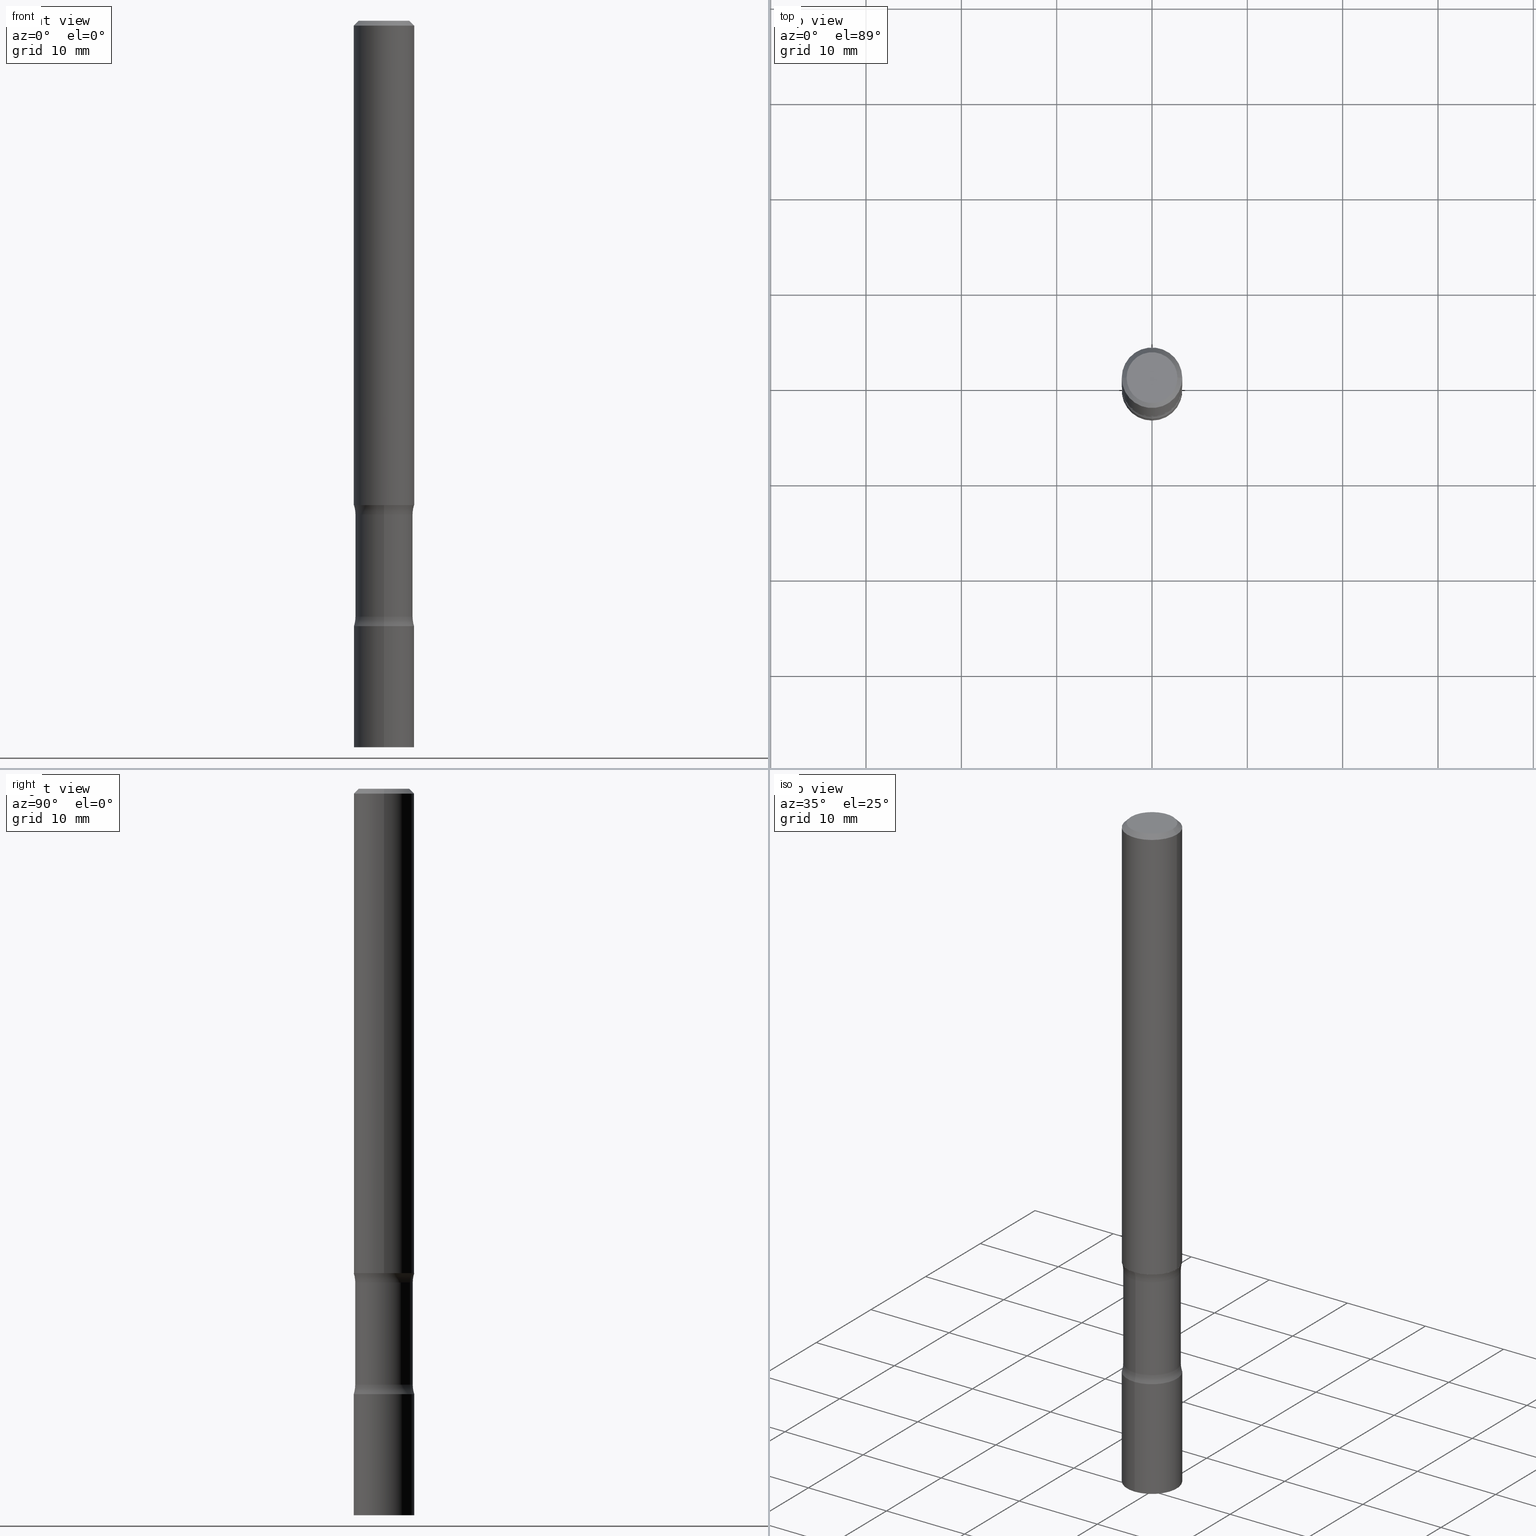
[diagram: canonical four-view strip — front | top / right | iso, engineering-drawing reading convention]
A machine part, canonical four-view strip (front | top / right | iso — engineering-drawing reading convention). The complete STEP part file that produces these views, byte-faithful:
ISO-10303-21;
HEADER;
FILE_DESCRIPTION (( 'STEP AP203' ),
    '1' );
FILE_NAME ('37785.STEP',
    '2024-03-11T13:25:19',
    ( '' ),
    ( '' ),
    'SwSTEP 2.0',
    'SolidWorks 2023',
    '' );
FILE_SCHEMA (( 'CONFIG_CONTROL_DESIGN' ));
ENDSEC;

DATA;
#1 = ORIENTED_EDGE ( 'NONE', *, *, #8, .T. ) ;
#2 = CIRCLE ( 'NONE', #424, 0.1249999999999997641 ) ;
#3 = CIRCLE ( 'NONE', #164, 0.1249999999999999584 ) ;
#4 = PRODUCT_DEFINITION_SHAPE ( 'NONE', 'NONE',  #20 ) ;
#5 = CARTESIAN_POINT ( 'NONE',  ( 8.292268179753181276E-16, 0.1187499999999896139, -3.000000000000000444 ) ) ;
#6 = DIRECTION ( 'NONE',  ( 1.000000000000000000, 0.000000000000000000, 0.000000000000000000 ) ) ;
#7 = ORIENTED_EDGE ( 'NONE', *, *, #140, .T. ) ;
#8 = EDGE_CURVE ( 'NONE', #36, #191, #358, .T. ) ;
#9 = CARTESIAN_POINT ( 'NONE',  ( 0.1249999999999998751, -8.728703347107825500E-16, 6.095220969744913435E-30 ) ) ;
#10 = CARTESIAN_POINT ( 'NONE',  ( 4.890937612370274875E-29, -6.982962677686292743E-15, -2.000000000000000444 ) ) ;
#11 = DIRECTION ( 'NONE',  ( -1.000000000000000000, 6.982962677686265922E-15, -4.883557194083112340E-29 ) ) ;
#12 = AXIS2_PLACEMENT_3D ( 'NONE', #250, #405, #411 ) ;
#13 = FACE_OUTER_BOUND ( 'NONE', #383, .T. ) ;
#14 = CARTESIAN_POINT ( 'NONE',  ( 6.114631195300628231E-29, -8.727329746987029987E-15, -2.500000000000000000 ) ) ;
#15 = APPROVAL ( #94, 'UNSPECIFIED' ) ;
#16 = CALENDAR_DATE ( 2024, 11, 3 ) ;
#17 = CARTESIAN_POINT ( 'NONE',  ( 8.728703347108444755E-16, 0.1249999999999912847, -2.500000000000000000 ) ) ;
#18 = DATE_TIME_ROLE ( 'creation_date' ) ;
#19 = DIRECTION ( 'NONE',  ( -6.982962677686265922E-15, -1.000000000000000000, 3.490931898794811600E-15 ) ) ;
#20 = PRODUCT_DEFINITION ( 'UNKNOWN', '', #73, #331 ) ;
#21 = AXIS2_PLACEMENT_3D ( 'NONE', #188, #488, #263 ) ;
#22 = DIRECTION ( 'NONE',  ( 1.000000000000000000, -6.982962677686265922E-15, 4.876176775795935793E-29 ) ) ;
#23 = ORIENTED_EDGE ( 'NONE', *, *, #211, .T. ) ;
#24 = EDGE_CURVE ( 'NONE', #26, #112, #362, .T. ) ;
#25 = DIRECTION ( 'NONE',  ( -2.445852478120250956E-29, 3.490931898794811600E-15, 1.000000000000000000 ) ) ;
#26 = VERTEX_POINT ( 'NONE', #282 ) ;
#27 = AXIS2_PLACEMENT_3D ( 'NONE', #207, #469, #170 ) ;
#28 = DIRECTION ( 'NONE',  ( 6.982962677686266711E-15, 1.000000000000000000, -3.359583909242031026E-15 ) ) ;
#29 = ORIENTED_EDGE ( 'NONE', *, *, #158, .F. ) ;
#30 = CARTESIAN_POINT ( 'NONE',  ( 0.000000000000000000, 0.000000000000000000, 0.000000000000000000 ) ) ;
#31 = CIRCLE ( 'NONE', #482, 0.1249999999999999584 ) ;
#32 = ADVANCED_FACE ( 'NONE', ( #82 ), #160, .T. ) ;
#33 = ORIENTED_EDGE ( 'NONE', *, *, #118, .F. ) ;
#34 = CC_DESIGN_DATE_AND_TIME_ASSIGNMENT ( #492, #18, ( #20 ) ) ;
#35 = CARTESIAN_POINT ( 'NONE',  ( 0.1250000000000000000, -7.855833012397076871E-15, -2.000000000000000444 ) ) ;
#36 = VERTEX_POINT ( 'NONE', #402 ) ;
#37 = ORIENTED_EDGE ( 'NONE', *, *, #445, .F. ) ;
#38 = DIRECTION ( 'NONE',  ( 2.537572289003869812E-29, -3.359583909242031026E-15, -1.000000000000000000 ) ) ;
#39 = EDGE_CURVE ( 'NONE', #474, #36, #356, .T. ) ;
#40 = CARTESIAN_POINT ( 'NONE',  ( 8.292268179753048156E-16, 0.1187499999999914874, -2.460968762510010510 ) ) ;
#41 = DIRECTION ( 'NONE',  ( 6.982962677686265133E-15, 1.000000000000000000, -4.601007147224020477E-15 ) ) ;
#42 = CARTESIAN_POINT ( 'NONE',  ( 1.702097152686087859E-15, 0.2437499999999914180, -2.460968762510010510 ) ) ;
#43 = EDGE_LOOP ( 'NONE', ( #245, #7, #151, #37 ) ) ;
#44 = TOROIDAL_SURFACE ( 'NONE', #113, 0.2437500000000000222, 0.1250000000000000000 ) ;
#45 = DIRECTION ( 'NONE',  ( -6.982962677686265922E-15, -1.000000000000000000, 0.000000000000000000 ) ) ;
#46 = DIRECTION ( 'NONE',  ( 2.537572289003869812E-29, -3.359583909242031420E-15, -1.000000000000000000 ) ) ;
#47 = EDGE_CURVE ( 'NONE', #382, #304, #316, .T. ) ;
#48 = LOCAL_TIME ( 9, 25, 19.00000000000000000, #297 ) ;
#49 = CARTESIAN_POINT ( 'NONE',  ( -8.575622497213801114E-16, -0.1250000000000087430, -2.500000000000000000 ) ) ;
#50 = CARTESIAN_POINT ( 'NONE',  ( -1.820262020262032864E-29, -2.358731438611790769E-14, -2.999999999999999556 ) ) ;
#51 = CARTESIAN_POINT ( 'NONE',  ( 4.890937612370273159E-31, -6.982962677686291609E-17, -0.02000000000000000042 ) ) ;
#52 = DIRECTION ( 'NONE',  ( 6.982962677686265922E-15, 1.000000000000000000, -3.490931898794811995E-15 ) ) ;
#53 = AXIS2_PLACEMENT_3D ( 'NONE', #248, #470, #120 ) ;
#54 = DIRECTION ( 'NONE',  ( -2.445852478120250956E-29, 3.490931898794811600E-15, 1.000000000000000000 ) ) ;
#55 = PERSON_AND_ORGANIZATION_ROLE ( 'creator' ) ;
#56 = CONICAL_SURFACE ( 'NONE', #169, 0.1249999999999997641, 0.7853981633974480570 ) ;
#57 = DIRECTION ( 'NONE',  ( -1.000000000000000000, 6.982962677686265922E-15, -4.883557194083112340E-29 ) ) ;
#58 = CALENDAR_DATE ( 2024, 11, 3 ) ;
#59 = CARTESIAN_POINT ( 'NONE',  ( 7.383417339802561736E-29, -1.040712170160804313E-14, -2.999999999999999556 ) ) ;
#60 = AXIS2_PLACEMENT_3D ( 'NONE', #440, #57, #253 ) ;
#61 = ORIENTED_EDGE ( 'NONE', *, *, #236, .T. ) ;
#62 = EDGE_CURVE ( 'NONE', #491, #314, #311, .T. ) ;
#63 = CIRCLE ( 'NONE', #208, 0.1249999999999999584 ) ;
#64 = CARTESIAN_POINT ( 'NONE',  ( 4.845845050798693605E-29, -7.047537792366015263E-15, -2.000000000000000444 ) ) ;
#65 = ORIENTED_EDGE ( 'NONE', *, *, #450, .T. ) ;
#66 = FACE_OUTER_BOUND ( 'NONE', #421, .T. ) ;
#67 = ORIENTED_EDGE ( 'NONE', *, *, #39, .F. ) ;
#68 = EDGE_CURVE ( 'NONE', #237, #315, #429, .T. ) ;
#69 = CARTESIAN_POINT ( 'NONE',  ( 8.881784197001248379E-16, 0.1249999999999999584, -4.363664873493513021E-16 ) ) ;
#70 = CIRCLE ( 'NONE', #136, 0.1187499999999999944 ) ;
#71 = ORIENTED_EDGE ( 'NONE', *, *, #8, .F. ) ;
#72 = PLANE ( 'NONE',  #216 ) ;
#73 = PRODUCT_DEFINITION_FORMATION_WITH_SPECIFIED_SOURCE ( 'ANY', '', #166, .NOT_KNOWN. ) ;
#74 = ORIENTED_EDGE ( 'NONE', *, *, #500, .F. ) ;
#75 = CYLINDRICAL_SURFACE ( 'NONE', #104, 0.1187500000000000361 ) ;
#76 = DIRECTION ( 'NONE',  ( 1.000000000000000000, -6.860497997771530774E-15, 4.842414157273910573E-29 ) ) ;
#77 = DIRECTION ( 'NONE',  ( 1.000000000000000000, -6.982962677686266711E-15, 0.000000000000000000 ) ) ;
#78 = LINE ( 'NONE', #9, #361 ) ;
#79 = ORIENTED_EDGE ( 'NONE', *, *, #251, .T. ) ;
#80 = DIRECTION ( 'NONE',  ( -2.445468806185136877E-29, 3.491481338843145188E-15, 1.000000000000000000 ) ) ;
#81 = ADVANCED_FACE ( 'NONE', ( #119 ), #75, .T. ) ;
#82 = FACE_OUTER_BOUND ( 'NONE', #463, .T. ) ;
#83 = CIRCLE ( 'NONE', #503, 0.1249999999999997641 ) ;
#84 = DIRECTION ( 'NONE',  ( 1.000000000000000000, -6.982962677686267499E-15, 4.876176775795935793E-29 ) ) ;
#85 = AXIS2_PLACEMENT_3D ( 'NONE', #64, #272, #425 ) ;
#86 = DIRECTION ( 'NONE',  ( 6.982962677686265133E-15, 1.000000000000000000, -4.601007147224020477E-15 ) ) ;
#87 = VECTOR ( 'NONE', #342, 39.37007874015748143 ) ;
#88 = CC_DESIGN_APPROVAL ( #15, ( #73 ) ) ;
#89 = APPROVAL_DATE_TIME ( #363, #257 ) ;
#90 = FACE_OUTER_BOUND ( 'NONE', #154, .T. ) ;
#91 = DIRECTION ( 'NONE',  ( 2.445852478120250115E-29, -3.490931898794811995E-15, -1.000000000000000000 ) ) ;
#92 = DIRECTION ( 'NONE',  ( 1.000000000000000000, -6.982962677686270655E-15, 0.000000000000000000 ) ) ;
#93 = ORIENTED_EDGE ( 'NONE', *, *, #47, .T. ) ;
#94 = APPROVAL_STATUS ( 'not_yet_approved' ) ;
#95 = AXIS2_PLACEMENT_3D ( 'NONE', #444, #480, #132 ) ;
#96 = DIRECTION ( 'NONE',  ( 2.537572289003869812E-29, -3.359583909242031026E-15, -1.000000000000000000 ) ) ;
#97 = PERSON_AND_ORGANIZATION ( #401, #487 ) ;
#98 = APPROVAL_PERSON_ORGANIZATION ( #222, #485, #302 ) ;
#99 = DIRECTION ( 'NONE',  ( -6.982962677686265922E-15, -1.000000000000000000, 4.370956789862822727E-15 ) ) ;
#100 = MANIFOLD_SOLID_BREP ( 'Body-Move/Copy2[1]', #471 ) ;
#101 = EDGE_CURVE ( 'NONE', #264, #315, #348, .T. ) ;
#102 = DIRECTION ( 'NONE',  ( 2.537572289003869812E-29, -3.359583909242031026E-15, -1.000000000000000000 ) ) ;
#103 = APPROVAL_STATUS ( 'not_yet_approved' ) ;
#104 = AXIS2_PLACEMENT_3D ( 'NONE', #387, #38, #41 ) ;
#105 = DIRECTION ( 'NONE',  ( 6.982962677686265133E-15, 1.000000000000000000, -2.300503573612011422E-15 ) ) ;
#106 = VERTEX_POINT ( 'NONE', #390 ) ;
#107 = SECURITY_CLASSIFICATION ( '', '', #416 ) ;
#108 = LINE ( 'NONE', #69, #87 ) ;
#109 = ORIENTED_EDGE ( 'NONE', *, *, #197, .T. ) ;
#110 = DIRECTION ( 'NONE',  ( -6.982962677686265922E-15, -1.000000000000000000, 3.490931898794811600E-15 ) ) ;
#111 = EDGE_LOOP ( 'NONE', ( #377, #426, #29, #233 ) ) ;
#112 = VERTEX_POINT ( 'NONE', #40 ) ;
#113 = AXIS2_PLACEMENT_3D ( 'NONE', #171, #177, #289 ) ;
#114 = DIRECTION ( 'NONE',  ( 2.537572289003869812E-29, -3.359583909242031026E-15, -1.000000000000000000 ) ) ;
#115 = VERTEX_POINT ( 'NONE', #201 ) ;
#116 = AXIS2_PLACEMENT_3D ( 'NONE', #381, #373, #453 ) ;
#117 = EDGE_LOOP ( 'NONE', ( #312, #61, #396, #33 ) ) ;
#118 = EDGE_CURVE ( 'NONE', #106, #191, #2, .T. ) ;
#119 = FACE_OUTER_BOUND ( 'NONE', #111, .T. ) ;
#120 = DIRECTION ( 'NONE',  ( 1.000000000000000000, -6.982962677686267499E-15, 4.876176775795935793E-29 ) ) ;
#121 = CARTESIAN_POINT ( 'NONE',  ( -8.575622497213932262E-16, -0.1250000000000071054, -2.000000000000000000 ) ) ;
#122 = ORIENTED_EDGE ( 'NONE', *, *, #388, .T. ) ;
#123 = ADVANCED_FACE ( 'NONE', ( #243 ), #202, .T. ) ;
#124 = ADVANCED_FACE ( 'NONE', ( #129 ), #44, .F. ) ;
#125 = EDGE_LOOP ( 'NONE', ( #122, #147, #419, #461 ) ) ;
#126 = PERSON_AND_ORGANIZATION ( #401, #487 ) ;
#127 = CARTESIAN_POINT ( 'NONE',  ( -0.1249999999999998751, 8.881784197001243449E-16, -6.148668862818626622E-30 ) ) ;
#128 = TOROIDAL_SURFACE ( 'NONE', #12, 0.2437500000000000222, 0.1250000000000000000 ) ;
#129 = FACE_OUTER_BOUND ( 'NONE', #193, .T. ) ;
#130 = VECTOR ( 'NONE', #417, 39.37007874015748143 ) ;
#131 =( NAMED_UNIT ( * ) SI_UNIT ( $, .STERADIAN. ) SOLID_ANGLE_UNIT ( ) );
#132 = DIRECTION ( 'NONE',  ( 6.860497997771530774E-15, 1.000000000000000000, 0.000000000000000000 ) ) ;
#133 = DATE_AND_TIME ( #291, #48 ) ;
#134 = DIRECTION ( 'NONE',  ( -2.445468806185136597E-29, 3.491481338843145583E-15, 1.000000000000000000 ) ) ;
#135 = ORIENTED_EDGE ( 'NONE', *, *, #445, .T. ) ;
#136 = AXIS2_PLACEMENT_3D ( 'NONE', #258, #340, #303 ) ;
#137 = EDGE_CURVE ( 'NONE', #497, #507, #400, .T. ) ;
#138 = CARTESIAN_POINT ( 'NONE',  ( 0.1249999999999997641, -9.273918764983027713E-16, -0.02000000000000000042 ) ) ;
#139 = CIRCLE ( 'NONE', #374, 0.1049999999999997741 ) ;
#140 = EDGE_CURVE ( 'NONE', #230, #115, #247, .T. ) ;
#141 = LINE ( 'NONE', #296, #130 ) ;
#142 = PERSON_AND_ORGANIZATION_ROLE ( 'design_supplier' ) ;
#143 = CARTESIAN_POINT ( 'NONE',  ( 4.890937612370273159E-31, -6.982962677686291609E-17, -0.02000000000000000042 ) ) ;
#144 = EDGE_LOOP ( 'NONE', ( #196, #232, #339, #74 ) ) ;
#145 = CALENDAR_DATE ( 2024, 11, 3 ) ;
#146 = CARTESIAN_POINT ( 'NONE',  ( 0.000000000000000000, 0.000000000000000000, 0.000000000000000000 ) ) ;
#147 = ORIENTED_EDGE ( 'NONE', *, *, #320, .T. ) ;
#148 = PRODUCT_RELATED_PRODUCT_CATEGORY ( 'detail', '', ( #166 ) ) ;
#149 = APPROVAL_PERSON_ORGANIZATION ( #126, #257, #249 ) ;
#150 = CARTESIAN_POINT ( 'NONE',  ( 6.114631195300628231E-29, -8.727329746987029987E-15, -2.500000000000000000 ) ) ;
#151 = ORIENTED_EDGE ( 'NONE', *, *, #467, .T. ) ;
#152 = ORIENTED_EDGE ( 'NONE', *, *, #137, .F. ) ;
#153 = CARTESIAN_POINT ( 'NONE',  ( 4.890937612370274875E-29, -6.982962677686292743E-15, -2.000000000000000444 ) ) ;
#154 = EDGE_LOOP ( 'NONE', ( #152, #307 ) ) ;
#155 = AXIS2_PLACEMENT_3D ( 'NONE', #59, #295, #86 ) ;
#156 = APPROVAL_STATUS ( 'not_yet_approved' ) ;
#157 = EDGE_LOOP ( 'NONE', ( #343, #135 ) ) ;
#158 = EDGE_CURVE ( 'NONE', #112, #315, #457, .T. ) ;
#159 = APPROVAL_PERSON_ORGANIZATION ( #262, #15, #294 ) ;
#160 = CYLINDRICAL_SURFACE ( 'NONE', #53, 0.1249999999999998751 ) ;
#161 = CARTESIAN_POINT ( 'NONE',  ( -8.146841372352955554E-16, -0.1187500000000104444, -2.999999999999999112 ) ) ;
#162 = VECTOR ( 'NONE', #238, 39.37007874015748143 ) ;
#163 = ORIENTED_EDGE ( 'NONE', *, *, #412, .F. ) ;
#164 = AXIS2_PLACEMENT_3D ( 'NONE', #14, #327, #452 ) ;
#165 = EDGE_CURVE ( 'NONE', #304, #106, #210, .T. ) ;
#166 = PRODUCT ( '37785', '37785', '', ( #475 ) ) ;
#167 = LENGTH_MEASURE_WITH_UNIT ( LENGTH_MEASURE( 0.02539999999999999897 ), #203 );
#168 = ORIENTED_EDGE ( 'NONE', *, *, #241, .F. ) ;
#169 = AXIS2_PLACEMENT_3D ( 'NONE', #143, #414, #192 ) ;
#170 = DIRECTION ( 'NONE',  ( 1.000000000000000000, -6.982962677686265922E-15, 4.876176775795935232E-29 ) ) ;
#171 = CARTESIAN_POINT ( 'NONE',  ( 4.938696304666674594E-29, -7.187535714856154390E-15, -2.039031237489990378 ) ) ;
#172 = CARTESIAN_POINT ( 'NONE',  ( 8.881784197001922855E-16, 0.1249999999999894945, -3.000000000000000888 ) ) ;
#173 = LOCAL_TIME ( 9, 25, 19.00000000000000000, #217 ) ;
#174 = CIRCLE ( 'NONE', #85, 0.1250000000000000278 ) ;
#175 = APPROVAL_DATE_TIME ( #368, #485 ) ;
#176 = DIRECTION ( 'NONE',  ( 2.537572289003869252E-29, -3.359583909242031420E-15, -1.000000000000000000 ) ) ;
#177 = DIRECTION ( 'NONE',  ( 2.537572289003869812E-29, -3.359583909242031026E-15, -1.000000000000000000 ) ) ;
#178 = ADVANCED_FACE ( 'NONE', ( #367 ), #182, .F. ) ;
#179 = VECTOR ( 'NONE', #504, 39.37007874015748143 ) ;
#180 = SHAPE_DEFINITION_REPRESENTATION ( #4, #181 ) ;
#181 = ADVANCED_BREP_SHAPE_REPRESENTATION ( '37785', ( #100, #270, #436, #391 ), #326 ) ;
#182 = PLANE ( 'NONE',  #439 ) ;
#183 = COORDINATED_UNIVERSAL_TIME_OFFSET ( 5, 0, .BEHIND. ) ;
#184 = LOCAL_TIME ( 9, 25, 19.00000000000000000, #455 ) ;
#185 = CARTESIAN_POINT ( 'NONE',  ( 6.015586608640499097E-29, -8.596201029557853074E-15, -2.460968762510010066 ) ) ;
#186 = DIMENSIONAL_EXPONENTS ( 1.000000000000000000, 0.000000000000000000, 0.000000000000000000, 0.000000000000000000, 0.000000000000000000, 0.000000000000000000, 0.000000000000000000 ) ;
#187 = ORIENTED_EDGE ( 'NONE', *, *, #68, .F. ) ;
#188 = CARTESIAN_POINT ( 'NONE',  ( 6.114631195300628231E-29, -8.727329746987029987E-15, -2.500000000000000000 ) ) ;
#189 = ORIENTED_EDGE ( 'NONE', *, *, #39, .T. ) ;
#190 = CARTESIAN_POINT ( 'NONE',  ( -0.1250000000000000000, -2.638217732531449633E-15, -2.000000000000000444 ) ) ;
#191 = VERTEX_POINT ( 'NONE', #138 ) ;
#192 = DIRECTION ( 'NONE',  ( -1.000000000000000000, 6.982962677686266711E-15, 0.000000000000000000 ) ) ;
#193 = EDGE_LOOP ( 'NONE', ( #468, #79, #473, #458 ) ) ;
#194 = ADVANCED_FACE ( 'NONE', ( #259 ), #324, .T. ) ;
#195 = DIRECTION ( 'NONE',  ( 2.537572289003869812E-29, -3.359583909242031026E-15, -1.000000000000000000 ) ) ;
#196 = ORIENTED_EDGE ( 'NONE', *, *, #372, .F. ) ;
#197 = EDGE_CURVE ( 'NONE', #191, #106, #83, .T. ) ;
#198 = AXIS2_PLACEMENT_3D ( 'NONE', #370, #254, #99 ) ;
#199 = CARTESIAN_POINT ( 'NONE',  ( 0.1249999999999997641, -9.273918764983027713E-16, -0.02000000000000000042 ) ) ;
#200 = CIRCLE ( 'NONE', #242, 0.1250000000000000000 ) ;
#201 = CARTESIAN_POINT ( 'NONE',  ( -8.728703347107095803E-16, -0.1250000000000104361, -2.999999999999999556 ) ) ;
#202 = CYLINDRICAL_SURFACE ( 'NONE', #204, 0.1249999999999999584 ) ;
#203 =( LENGTH_UNIT ( ) NAMED_UNIT ( * ) SI_UNIT ( $, .METRE. ) );
#204 = AXIS2_PLACEMENT_3D ( 'NONE', #354, #54, #19 ) ;
#205 = ORIENTED_EDGE ( 'NONE', *, *, #428, .T. ) ;
#206 =( NAMED_UNIT ( * ) PLANE_ANGLE_UNIT ( ) SI_UNIT ( $, .RADIAN. ) );
#207 = CARTESIAN_POINT ( 'NONE',  ( 0.000000000000000000, 0.000000000000000000, 0.000000000000000000 ) ) ;
#208 = AXIS2_PLACEMENT_3D ( 'NONE', #498, #25, #493 ) ;
#209 = DIRECTION ( 'NONE',  ( -2.445852478120250956E-29, 3.490931898794811995E-15, 1.000000000000000000 ) ) ;
#210 = LINE ( 'NONE', #127, #371 ) ;
#211 = EDGE_CURVE ( 'NONE', #26, #497, #285, .T. ) ;
#212 = CYLINDRICAL_SURFACE ( 'NONE', #418, 0.1249999999999998751 ) ;
#213 = DIRECTION ( 'NONE',  ( 2.537572289003869812E-29, -3.359583909242031026E-15, -1.000000000000000000 ) ) ;
#214 = PERSON_AND_ORGANIZATION ( #401, #487 ) ;
#215 = CARTESIAN_POINT ( 'NONE',  ( 6.015586608640499097E-29, -8.596201029557853074E-15, -2.460968762510010066 ) ) ;
#216 = AXIS2_PLACEMENT_3D ( 'NONE', #234, #384, #266 ) ;
#217 = COORDINATED_UNIVERSAL_TIME_OFFSET ( 5, 0, .BEHIND. ) ;
#218 = ADVANCED_FACE ( 'NONE', ( #13 ), #128, .F. ) ;
#219 = CARTESIAN_POINT ( 'NONE',  ( -8.361231934783565195E-16, -0.1187500000000071693, -2.039031237489990378 ) ) ;
#220 = PERSON_AND_ORGANIZATION ( #401, #487 ) ;
#221 = DIRECTION ( 'NONE',  ( -2.445468806185136877E-29, 3.491481338843145188E-15, 1.000000000000000000 ) ) ;
#222 = PERSON_AND_ORGANIZATION ( #401, #487 ) ;
#223 = DIRECTION ( 'NONE',  ( -2.438088387897960049E-29, 3.491481338843145188E-15, 1.000000000000000000 ) ) ;
#224 = EDGE_LOOP ( 'NONE', ( #310, #346 ) ) ;
#225 = CIRCLE ( 'NONE', #21, 0.1249999999999999584 ) ;
#226 = DIRECTION ( 'NONE',  ( -2.445852478120250956E-29, 3.490931898794811600E-15, 1.000000000000000000 ) ) ;
#227 = VERTEX_POINT ( 'NONE', #17 ) ;
#228 = APPLICATION_CONTEXT ( 'configuration controlled 3d designs of mechanical parts and assemblies' ) ;
#229 = CARTESIAN_POINT ( 'NONE',  ( -8.361231934783450810E-16, -0.1187500000000086681, -2.460968762510009622 ) ) ;
#230 = VERTEX_POINT ( 'NONE', #172 ) ;
#231 = DIRECTION ( 'NONE',  ( 1.000000000000000000, -6.982962677686265922E-15, 4.876176775795935232E-29 ) ) ;
#232 = ORIENTED_EDGE ( 'NONE', *, *, #101, .T. ) ;
#233 = ORIENTED_EDGE ( 'NONE', *, *, #24, .F. ) ;
#234 = CARTESIAN_POINT ( 'NONE',  ( 7.332110811570563480E-16, 0.1049999999999997741, -3.666055405785295052E-16 ) ) ;
#235 = ORIENTED_EDGE ( 'NONE', *, *, #372, .T. ) ;
#236 = EDGE_CURVE ( 'NONE', #304, #382, #301, .T. ) ;
#237 = VERTEX_POINT ( 'NONE', #219 ) ;
#238 = DIRECTION ( 'NONE',  ( 2.537572289003869812E-29, -3.359583909242031420E-15, -1.000000000000000000 ) ) ;
#239 = AXIS2_PLACEMENT_3D ( 'NONE', #215, #213, #413 ) ;
#240 = DIRECTION ( 'NONE',  ( 6.860497997771530774E-15, 1.000000000000000000, 0.000000000000000000 ) ) ;
#241 = EDGE_CURVE ( 'NONE', #227, #264, #3, .T. ) ;
#242 = AXIS2_PLACEMENT_3D ( 'NONE', #42, #11, #45 ) ;
#243 = FACE_OUTER_BOUND ( 'NONE', #125, .T. ) ;
#244 = CARTESIAN_POINT ( 'NONE',  ( 6.113672015462842613E-29, -8.728703347107864943E-15, -2.500000000000000000 ) ) ;
#245 = ORIENTED_EDGE ( 'NONE', *, *, #320, .F. ) ;
#246 = CARTESIAN_POINT ( 'NONE',  ( 0.000000000000000000, 0.000000000000000000, 0.000000000000000000 ) ) ;
#247 = CIRCLE ( 'NONE', #198, 0.1249999999999999584 ) ;
#248 = CARTESIAN_POINT ( 'NONE',  ( 0.000000000000000000, 0.000000000000000000, 0.000000000000000000 ) ) ;
#249 = APPROVAL_ROLE ( '' ) ;
#250 = CARTESIAN_POINT ( 'NONE',  ( 6.018222341714267541E-29, -8.592426509779609334E-15, -2.460968762510010066 ) ) ;
#251 = EDGE_CURVE ( 'NONE', #237, #507, #448, .T. ) ;
#252 = PERSON_AND_ORGANIZATION ( #401, #487 ) ;
#253 = DIRECTION ( 'NONE',  ( -6.982962677686265922E-15, -1.000000000000000000, 0.000000000000000000 ) ) ;
#254 = DIRECTION ( 'NONE',  ( -2.445852478120250956E-29, 3.490931898794811600E-15, 1.000000000000000000 ) ) ;
#255 = ORIENTED_EDGE ( 'NONE', *, *, #298, .T. ) ;
#256 = DATE_TIME_ROLE ( 'classification_date' ) ;
#257 = APPROVAL ( #156, 'UNSPECIFIED' ) ;
#258 = CARTESIAN_POINT ( 'NONE',  ( 4.944889637458821058E-29, -7.178666509795189020E-15, -2.039031237489990378 ) ) ;
#259 = FACE_OUTER_BOUND ( 'NONE', #347, .T. ) ;
#260 = FACE_OUTER_BOUND ( 'NONE', #43, .T. ) ;
#261 = CC_DESIGN_PERSON_AND_ORGANIZATION_ASSIGNMENT ( #214, #55, ( #73 ) ) ;
#262 = PERSON_AND_ORGANIZATION ( #401, #487 ) ;
#263 = DIRECTION ( 'NONE',  ( -6.982962677686265922E-15, -1.000000000000000000, 4.370956789862822727E-15 ) ) ;
#264 = VERTEX_POINT ( 'NONE', #49 ) ;
#265 = ADVANCED_FACE ( 'NONE', ( #90 ), #290, .F. ) ;
#266 = DIRECTION ( 'NONE',  ( -1.000000000000000000, 6.982962677686265922E-15, -4.876176775795935793E-29 ) ) ;
#267 = ORIENTED_EDGE ( 'NONE', *, *, #241, .T. ) ;
#268 = DIRECTION ( 'NONE',  ( -2.445468806185136597E-29, 3.491481338843145583E-15, 1.000000000000000000 ) ) ;
#269 = EDGE_LOOP ( 'NONE', ( #499, #1, #109, #273 ) ) ;
#270 = MANIFOLD_SOLID_BREP ( 'Body-Move/Copy2[2]', #277 ) ;
#271 = AXIS2_PLACEMENT_3D ( 'NONE', #430, #76, #240 ) ;
#272 = DIRECTION ( 'NONE',  ( 2.537572289003869812E-29, -3.359583909242031026E-15, -1.000000000000000000 ) ) ;
#273 = ORIENTED_EDGE ( 'NONE', *, *, #450, .F. ) ;
#274 = LOCAL_TIME ( 9, 25, 19.00000000000000000, #183 ) ;
#275 = DIRECTION ( 'NONE',  ( -6.982962677686265922E-15, -1.000000000000000000, 4.370956789862822727E-15 ) ) ;
#276 = CARTESIAN_POINT ( 'NONE',  ( 4.890937612370274875E-29, -6.982962677686292743E-15, -2.000000000000000444 ) ) ;
#277 = CLOSED_SHELL ( 'NONE', ( #32, #284, #349, #352, #395, #479 ) ) ;
#278 = CARTESIAN_POINT ( 'NONE',  ( 6.114631195300628231E-29, -8.727329746987029987E-15, -2.500000000000000000 ) ) ;
#279 = LINE ( 'NONE', #394, #427 ) ;
#280 = AXIS2_PLACEMENT_3D ( 'NONE', #50, #91, #52 ) ;
#281 = DIRECTION ( 'NONE',  ( -2.445852478120250956E-29, 3.490931898794811600E-15, 1.000000000000000000 ) ) ;
#282 = CARTESIAN_POINT ( 'NONE',  ( 8.292268179752934757E-16, 0.1187499999999928196, -2.039031237489990822 ) ) ;
#283 = COORDINATED_UNIVERSAL_TIME_OFFSET ( 5, 0, .BEHIND. ) ;
#284 = ADVANCED_FACE ( 'NONE', ( #330 ), #357, .T. ) ;
#285 = CIRCLE ( 'NONE', #60, 0.1250000000000000000 ) ;
#286 = DIRECTION ( 'NONE',  ( 6.982962677686265922E-15, 1.000000000000000000, -3.490931898794811995E-15 ) ) ;
#287 = PERSON_AND_ORGANIZATION ( #401, #487 ) ;
#288 = CIRCLE ( 'NONE', #351, 0.1187500000000000777 ) ;
#289 = DIRECTION ( 'NONE',  ( 6.982962677686266711E-15, 1.000000000000000000, -3.359583909242031026E-15 ) ) ;
#290 = PLANE ( 'NONE',  #293 ) ;
#291 = CALENDAR_DATE ( 2024, 11, 3 ) ;
#292 = DIRECTION ( 'NONE',  ( 6.982962677686265922E-15, 1.000000000000000000, -3.359583909242031420E-15 ) ) ;
#293 = AXIS2_PLACEMENT_3D ( 'NONE', #406, #176, #292 ) ;
#294 = APPROVAL_ROLE ( '' ) ;
#295 = DIRECTION ( 'NONE',  ( 2.537572289003869812E-29, -3.359583909242031026E-15, -1.000000000000000000 ) ) ;
#296 = CARTESIAN_POINT ( 'NONE',  ( -0.1249999999999997641, 8.030407079339186601E-16, -0.02000000000000000042 ) ) ;
#297 = COORDINATED_UNIVERSAL_TIME_OFFSET ( 5, 0, .BEHIND. ) ;
#298 = EDGE_CURVE ( 'NONE', #237, #26, #70, .T. ) ;
#299 = DIRECTION ( 'NONE',  ( 6.982962677686265922E-15, 1.000000000000000000, -4.601007147224018900E-15 ) ) ;
#300 = ORIENTED_EDGE ( 'NONE', *, *, #236, .F. ) ;
#301 = CIRCLE ( 'NONE', #317, 0.1250000000000000000 ) ;
#302 = APPROVAL_ROLE ( '' ) ;
#303 = DIRECTION ( 'NONE',  ( 6.982962677686265133E-15, 1.000000000000000000, -2.300503573612011422E-15 ) ) ;
#304 = VERTEX_POINT ( 'NONE', #190 ) ;
#305 = AXIS2_PLACEMENT_3D ( 'NONE', #30, #226, #110 ) ;
#306 = DIRECTION ( 'NONE',  ( 6.982962677686265922E-15, 1.000000000000000000, -4.370956789862822727E-15 ) ) ;
#307 = ORIENTED_EDGE ( 'NONE', *, *, #337, .F. ) ;
#308 = ADVANCED_FACE ( 'NONE', ( #309 ), #397, .F. ) ;
#309 = FACE_OUTER_BOUND ( 'NONE', #144, .T. ) ;
#310 = ORIENTED_EDGE ( 'NONE', *, *, #388, .F. ) ;
#311 = CIRCLE ( 'NONE', #333, 0.1249999999999999584 ) ;
#312 = ORIENTED_EDGE ( 'NONE', *, *, #165, .F. ) ;
#313 = CC_DESIGN_SECURITY_CLASSIFICATION ( #107, ( #73 ) ) ;
#314 = VERTEX_POINT ( 'NONE', #338 ) ;
#315 = VERTEX_POINT ( 'NONE', #229 ) ;
#316 = CIRCLE ( 'NONE', #478, 0.1250000000000000000 ) ;
#317 = AXIS2_PLACEMENT_3D ( 'NONE', #10, #134, #92 ) ;
#318 = ORIENTED_EDGE ( 'NONE', *, *, #118, .T. ) ;
#319 = ORIENTED_EDGE ( 'NONE', *, *, #500, .T. ) ;
#320 = EDGE_CURVE ( 'NONE', #230, #314, #108, .T. ) ;
#321 = APPLICATION_PROTOCOL_DEFINITION ( 'international standard', 'config_control_design', 1994, #228 ) ;
#322 = DIRECTION ( 'NONE',  ( -2.445468806185136597E-29, 3.491481338843145583E-15, 1.000000000000000000 ) ) ;
#323 = DIRECTION ( 'NONE',  ( -6.982962677686265922E-15, -1.000000000000000000, 3.359583909242031420E-15 ) ) ;
#324 = CYLINDRICAL_SURFACE ( 'NONE', #155, 0.1187500000000000361 ) ;
#325 =( CONVERSION_BASED_UNIT ( 'INCH', #167 ) LENGTH_UNIT ( ) NAMED_UNIT ( #186 ) );
#326 =( GEOMETRIC_REPRESENTATION_CONTEXT ( 3 ) GLOBAL_UNCERTAINTY_ASSIGNED_CONTEXT ( ( #454 ) ) GLOBAL_UNIT_ASSIGNED_CONTEXT ( ( #325, #206, #131 ) ) REPRESENTATION_CONTEXT ( 'NONE', 'WORKASPACE' ) );
#327 = DIRECTION ( 'NONE',  ( 2.537572289003869812E-29, -3.359583909242031026E-15, -1.000000000000000000 ) ) ;
#328 = EDGE_CURVE ( 'NONE', #26, #237, #506, .T. ) ;
#329 = APPLICATION_CONTEXT ( 'configuration controlled 3d designs of mechanical parts and assemblies' ) ;
#330 = FACE_OUTER_BOUND ( 'NONE', #269, .T. ) ;
#331 = DESIGN_CONTEXT ( 'detailed design', #329, 'design' ) ;
#332 = CARTESIAN_POINT ( 'NONE',  ( 4.845845050798693605E-29, -7.047537792366015263E-15, -2.000000000000000444 ) ) ;
#333 = AXIS2_PLACEMENT_3D ( 'NONE', #278, #281, #275 ) ;
#334 = DIRECTION ( 'NONE',  ( 2.445852478120250115E-29, -3.490931898794811995E-15, -1.000000000000000000 ) ) ;
#335 = CC_DESIGN_APPROVAL ( #485, ( #107 ) ) ;
#336 = PERSON_AND_ORGANIZATION_ROLE ( 'creator' ) ;
#337 = EDGE_CURVE ( 'NONE', #507, #497, #174, .T. ) ;
#338 = CARTESIAN_POINT ( 'NONE',  ( 8.881784197001982020E-16, 0.1249999999999912292, -2.500000000000000444 ) ) ;
#339 = ORIENTED_EDGE ( 'NONE', *, *, #412, .T. ) ;
#340 = DIRECTION ( 'NONE',  ( 2.537572289003869812E-29, -3.359583909242031026E-15, -1.000000000000000000 ) ) ;
#341 = EDGE_LOOP ( 'NONE', ( #189, #205 ) ) ;
#342 = DIRECTION ( 'NONE',  ( -2.445852478120250956E-29, 3.490931898794811995E-15, 1.000000000000000000 ) ) ;
#343 = ORIENTED_EDGE ( 'NONE', *, *, #62, .T. ) ;
#344 = ADVANCED_FACE ( 'NONE', ( #260 ), #490, .T. ) ;
#345 = FACE_OUTER_BOUND ( 'NONE', #393, .T. ) ;
#346 = ORIENTED_EDGE ( 'NONE', *, *, #140, .F. ) ;
#347 = EDGE_LOOP ( 'NONE', ( #187, #255, #376, #163 ) ) ;
#348 = CIRCLE ( 'NONE', #271, 0.1250000000000000000 ) ;
#349 = ADVANCED_FACE ( 'NONE', ( #495 ), #56, .T. ) ;
#350 = ORIENTED_EDGE ( 'NONE', *, *, #137, .T. ) ;
#351 = AXIS2_PLACEMENT_3D ( 'NONE', #185, #195, #299 ) ;
#352 = ADVANCED_FACE ( 'NONE', ( #378 ), #72, .F. ) ;
#353 = CARTESIAN_POINT ( 'NONE',  ( 4.890937612370273159E-31, -6.982962677686291609E-17, -0.02000000000000000042 ) ) ;
#354 = CARTESIAN_POINT ( 'NONE',  ( 0.000000000000000000, 0.000000000000000000, 0.000000000000000000 ) ) ;
#355 = DIRECTION ( 'NONE',  ( 0.000000000000000000, 0.000000000000000000, 1.000000000000000000 ) ) ;
#356 = CIRCLE ( 'NONE', #27, 0.1049999999999997741 ) ;
#357 = CONICAL_SURFACE ( 'NONE', #380, 0.1249999999999997641, 0.7853981633974480570 ) ;
#358 = LINE ( 'NONE', #199, #179 ) ;
#359 = ADVANCED_FACE ( 'NONE', ( #66 ), #443, .F. ) ;
#360 = CARTESIAN_POINT ( 'NONE',  ( 8.728703347108321496E-16, 0.1249999999999929917, -2.000000000000000888 ) ) ;
#361 = VECTOR ( 'NONE', #80, 39.37007874015748143 ) ;
#362 = LINE ( 'NONE', #5, #447 ) ;
#363 = DATE_AND_TIME ( #438, #432 ) ;
#364 = DIRECTION ( 'NONE',  ( -2.445468806185136597E-29, 3.491481338843145583E-15, 1.000000000000000000 ) ) ;
#365 = DIRECTION ( 'NONE',  ( -2.445468806185136597E-29, 3.491481338843145583E-15, 1.000000000000000000 ) ) ;
#366 = CC_DESIGN_PERSON_AND_ORGANIZATION_ASSIGNMENT ( #97, #142, ( #73 ) ) ;
#367 = FACE_OUTER_BOUND ( 'NONE', #157, .T. ) ;
#368 = DATE_AND_TIME ( #145, #173 ) ;
#369 = DIRECTION ( 'NONE',  ( 6.982962677686265922E-15, 1.000000000000000000, -4.370956789862820361E-15 ) ) ;
#370 = CARTESIAN_POINT ( 'NONE',  ( 7.337557434360752308E-29, -1.047279569638443441E-14, -3.000000000000000444 ) ) ;
#371 = VECTOR ( 'NONE', #221, 39.37007874015748143 ) ;
#372 = EDGE_CURVE ( 'NONE', #264, #227, #31, .T. ) ;
#373 = DIRECTION ( 'NONE',  ( 2.537572289003869812E-29, -3.359583909242031026E-15, -1.000000000000000000 ) ) ;
#374 = AXIS2_PLACEMENT_3D ( 'NONE', #146, #268, #231 ) ;
#375 = ORIENTED_EDGE ( 'NONE', *, *, #465, .F. ) ;
#376 = ORIENTED_EDGE ( 'NONE', *, *, #24, .T. ) ;
#377 = ORIENTED_EDGE ( 'NONE', *, *, #328, .T. ) ;
#378 = FACE_OUTER_BOUND ( 'NONE', #341, .T. ) ;
#379 = ORIENTED_EDGE ( 'NONE', *, *, #158, .T. ) ;
#380 = AXIS2_PLACEMENT_3D ( 'NONE', #51, #446, #449 ) ;
#381 = CARTESIAN_POINT ( 'NONE',  ( 6.018222341714267541E-29, -8.592426509779609334E-15, -2.460968762510010066 ) ) ;
#382 = VERTEX_POINT ( 'NONE', #35 ) ;
#383 = EDGE_LOOP ( 'NONE', ( #423, #168, #319, #379 ) ) ;
#384 = DIRECTION ( 'NONE',  ( 2.438088387897960049E-29, -3.491481338843145188E-15, -1.000000000000000000 ) ) ;
#385 = ORIENTED_EDGE ( 'NONE', *, *, #328, .F. ) ;
#386 = CC_DESIGN_PERSON_AND_ORGANIZATION_ASSIGNMENT ( #287, #442, ( #166 ) ) ;
#387 = CARTESIAN_POINT ( 'NONE',  ( 7.383417339802561736E-29, -1.040712170160804313E-14, -2.999999999999999556 ) ) ;
#388 = EDGE_CURVE ( 'NONE', #115, #230, #63, .T. ) ;
#389 = AXIS2_PLACEMENT_3D ( 'NONE', #332, #96, #369 ) ;
#390 = CARTESIAN_POINT ( 'NONE',  ( -0.1249999999999997641, 8.030407079339186601E-16, -0.02000000000000000042 ) ) ;
#391 = AXIS2_PLACEMENT_3D ( 'NONE', #433, #355, #6 ) ;
#392 = AXIS2_PLACEMENT_3D ( 'NONE', #464, #422, #105 ) ;
#393 = EDGE_LOOP ( 'NONE', ( #466, #300 ) ) ;
#394 = CARTESIAN_POINT ( 'NONE',  ( -8.728703347107829444E-16, -0.1249999999999999584, 4.363664873493513021E-16 ) ) ;
#395 = ADVANCED_FACE ( 'NONE', ( #345 ), #462, .F. ) ;
#396 = ORIENTED_EDGE ( 'NONE', *, *, #465, .T. ) ;
#397 = TOROIDAL_SURFACE ( 'NONE', #116, 0.2437500000000000222, 0.1250000000000000000 ) ;
#398 = CLOSED_SHELL ( 'NONE', ( #81, #308, #124, #359, #265, #451, #218, #194 ) ) ;
#399 = FACE_OUTER_BOUND ( 'NONE', #224, .T. ) ;
#400 = CIRCLE ( 'NONE', #389, 0.1250000000000000278 ) ;
#401 = PERSON ( 'UNSPECIFIED', 'UNSPECIFIED', 'UNSPECIFIED', ('UNSPECIFIED'), ('UNSPECIFIED'), ('UNSPECIFIED') ) ;
#402 = CARTESIAN_POINT ( 'NONE',  ( 0.1049999999999997741, -8.238720831321559881E-16, 5.444276250344138855E-30 ) ) ;
#403 = CARTESIAN_POINT ( 'NONE',  ( -0.1049999999999997741, 7.681258945454875041E-16, -5.249639473182155366E-30 ) ) ;
#404 = AXIS2_PLACEMENT_3D ( 'NONE', #244, #435, #323 ) ;
#405 = DIRECTION ( 'NONE',  ( 2.537572289003869812E-29, -3.359583909242031026E-15, -1.000000000000000000 ) ) ;
#406 = CARTESIAN_POINT ( 'NONE',  ( 4.890937612370274875E-29, -6.982962677686292743E-15, -2.000000000000000444 ) ) ;
#407 = PLANE ( 'NONE',  #280 ) ;
#408 = CARTESIAN_POINT ( 'NONE',  ( 4.890937612370273159E-31, -6.982962677686291609E-17, -0.02000000000000000042 ) ) ;
#409 = DATE_AND_TIME ( #16, #274 ) ;
#410 = CC_DESIGN_APPROVAL ( #257, ( #20 ) ) ;
#411 = DIRECTION ( 'NONE',  ( 6.982962677686266711E-15, 1.000000000000000000, -3.359583909242031026E-15 ) ) ;
#412 = EDGE_CURVE ( 'NONE', #315, #112, #288, .T. ) ;
#413 = DIRECTION ( 'NONE',  ( 6.982962677686265922E-15, 1.000000000000000000, -4.601007147224018900E-15 ) ) ;
#414 = DIRECTION ( 'NONE',  ( 2.445468806185136597E-29, -3.491481338843145583E-15, -1.000000000000000000 ) ) ;
#415 = EDGE_LOOP ( 'NONE', ( #71, #67, #65, #318 ) ) ;
#416 = SECURITY_CLASSIFICATION_LEVEL ( 'unclassified' ) ;
#417 = DIRECTION ( 'NONE',  ( -0.7071067811865473507, 2.468850131082255088E-15, -0.7071067811865476838 ) ) ;
#418 = AXIS2_PLACEMENT_3D ( 'NONE', #246, #365, #84 ) ;
#419 = ORIENTED_EDGE ( 'NONE', *, *, #62, .F. ) ;
#420 = PLANE ( 'NONE',  #404 ) ;
#421 = EDGE_LOOP ( 'NONE', ( #494, #385, #23, #350 ) ) ;
#422 = DIRECTION ( 'NONE',  ( 2.537572289003869812E-29, -3.359583909242031026E-15, -1.000000000000000000 ) ) ;
#423 = ORIENTED_EDGE ( 'NONE', *, *, #101, .F. ) ;
#424 = AXIS2_PLACEMENT_3D ( 'NONE', #353, #431, #77 ) ;
#425 = DIRECTION ( 'NONE',  ( 6.982962677686265922E-15, 1.000000000000000000, -4.370956789862820361E-15 ) ) ;
#426 = ORIENTED_EDGE ( 'NONE', *, *, #68, .T. ) ;
#427 = VECTOR ( 'NONE', #209, 39.37007874015748143 ) ;
#428 = EDGE_CURVE ( 'NONE', #36, #474, #139, .T. ) ;
#429 = LINE ( 'NONE', #161, #162 ) ;
#430 = CARTESIAN_POINT ( 'NONE',  ( -1.672246386956750707E-15, -0.2437500000000086264, -2.460968762510009622 ) ) ;
#431 = DIRECTION ( 'NONE',  ( -2.445468806185136597E-29, 3.491481338843145583E-15, 1.000000000000000000 ) ) ;
#432 = LOCAL_TIME ( 9, 25, 19.00000000000000000, #283 ) ;
#433 = CARTESIAN_POINT ( 'NONE',  ( 0.000000000000000000, 0.000000000000000000, 0.000000000000000000 ) ) ;
#434 = EDGE_LOOP ( 'NONE', ( #267, #235 ) ) ;
#435 = DIRECTION ( 'NONE',  ( -2.537572289003869252E-29, 3.359583909242031420E-15, 1.000000000000000000 ) ) ;
#436 = MANIFOLD_SOLID_BREP ( 'Body-Move/Copy2[4]', #398 ) ;
#437 = ORIENTED_EDGE ( 'NONE', *, *, #165, .T. ) ;
#438 = CALENDAR_DATE ( 2024, 11, 3 ) ;
#439 = AXIS2_PLACEMENT_3D ( 'NONE', #486, #334, #286 ) ;
#440 = CARTESIAN_POINT ( 'NONE',  ( 1.702097152686077012E-15, 0.2437499999999928613, -2.039031237489991266 ) ) ;
#441 = CC_DESIGN_DATE_AND_TIME_ASSIGNMENT ( #133, #256, ( #107 ) ) ;
#442 = PERSON_AND_ORGANIZATION_ROLE ( 'design_owner' ) ;
#443 = TOROIDAL_SURFACE ( 'NONE', #496, 0.2437500000000000222, 0.1250000000000000000 ) ;
#444 = CARTESIAN_POINT ( 'NONE',  ( -1.672246386956761357E-15, -0.2437500000000072109, -2.039031237489989934 ) ) ;
#445 = EDGE_CURVE ( 'NONE', #314, #491, #225, .T. ) ;
#446 = DIRECTION ( 'NONE',  ( 2.445468806185136597E-29, -3.491481338843145583E-15, -1.000000000000000000 ) ) ;
#447 = VECTOR ( 'NONE', #46, 39.37007874015748143 ) ;
#448 = CIRCLE ( 'NONE', #95, 0.1250000000000000000 ) ;
#449 = DIRECTION ( 'NONE',  ( -1.000000000000000000, 6.982962677686266711E-15, 0.000000000000000000 ) ) ;
#450 = EDGE_CURVE ( 'NONE', #474, #106, #141, .T. ) ;
#451 = ADVANCED_FACE ( 'NONE', ( #460 ), #420, .F. ) ;
#452 = DIRECTION ( 'NONE',  ( 6.982962677686265922E-15, 1.000000000000000000, -4.370956789862822727E-15 ) ) ;
#453 = DIRECTION ( 'NONE',  ( 6.982962677686266711E-15, 1.000000000000000000, -3.359583909242031026E-15 ) ) ;
#454 = UNCERTAINTY_MEASURE_WITH_UNIT (LENGTH_MEASURE( 1.000000000000000082E-05 ), #325, 'distance_accuracy_value', 'NONE');
#455 = COORDINATED_UNIVERSAL_TIME_OFFSET ( 5, 0, .BEHIND. ) ;
#456 = CARTESIAN_POINT ( 'NONE',  ( 4.938696304666674594E-29, -7.187535714856154390E-15, -2.039031237489990378 ) ) ;
#457 = CIRCLE ( 'NONE', #239, 0.1187500000000000777 ) ;
#458 = ORIENTED_EDGE ( 'NONE', *, *, #211, .F. ) ;
#459 = PERSON_AND_ORGANIZATION_ROLE ( 'classification_officer' ) ;
#460 = FACE_OUTER_BOUND ( 'NONE', #434, .T. ) ;
#461 = ORIENTED_EDGE ( 'NONE', *, *, #467, .F. ) ;
#462 = PLANE ( 'NONE',  #505 ) ;
#463 = EDGE_LOOP ( 'NONE', ( #93, #437, #502, #375 ) ) ;
#464 = CARTESIAN_POINT ( 'NONE',  ( 4.944889637458821058E-29, -7.178666509795189020E-15, -2.039031237489990378 ) ) ;
#465 = EDGE_CURVE ( 'NONE', #382, #191, #78, .T. ) ;
#466 = ORIENTED_EDGE ( 'NONE', *, *, #47, .F. ) ;
#467 = EDGE_CURVE ( 'NONE', #115, #491, #279, .T. ) ;
#468 = ORIENTED_EDGE ( 'NONE', *, *, #298, .F. ) ;
#469 = DIRECTION ( 'NONE',  ( -2.445468806185136597E-29, 3.491481338843145583E-15, 1.000000000000000000 ) ) ;
#470 = DIRECTION ( 'NONE',  ( -2.445468806185136597E-29, 3.491481338843145583E-15, 1.000000000000000000 ) ) ;
#471 = CLOSED_SHELL ( 'NONE', ( #123, #344, #178, #484 ) ) ;
#472 = CC_DESIGN_PERSON_AND_ORGANIZATION_ASSIGNMENT ( #220, #459, ( #107 ) ) ;
#473 = ORIENTED_EDGE ( 'NONE', *, *, #337, .T. ) ;
#474 = VERTEX_POINT ( 'NONE', #403 ) ;
#475 = MECHANICAL_CONTEXT ( 'NONE', #228, 'mechanical' ) ;
#476 = DIRECTION ( 'NONE',  ( 1.000000000000000000, -6.982962677686270655E-15, 0.000000000000000000 ) ) ;
#477 = CARTESIAN_POINT ( 'NONE',  ( -8.728703347107218077E-16, -0.1250000000000086875, -2.499999999999999556 ) ) ;
#478 = AXIS2_PLACEMENT_3D ( 'NONE', #276, #322, #476 ) ;
#479 = ADVANCED_FACE ( 'NONE', ( #481 ), #212, .T. ) ;
#480 = DIRECTION ( 'NONE',  ( 1.000000000000000000, -6.860497997771530774E-15, 4.842414157273910573E-29 ) ) ;
#481 = FACE_OUTER_BOUND ( 'NONE', #117, .T. ) ;
#482 = AXIS2_PLACEMENT_3D ( 'NONE', #150, #114, #306 ) ;
#483 = DIRECTION ( 'NONE',  ( 1.000000000000000000, -6.982962677686266711E-15, 0.000000000000000000 ) ) ;
#484 = ADVANCED_FACE ( 'NONE', ( #399 ), #407, .T. ) ;
#485 = APPROVAL ( #103, 'UNSPECIFIED' ) ;
#486 = CARTESIAN_POINT ( 'NONE',  ( 6.113672015462842613E-29, -8.728703347107864943E-15, -2.500000000000000000 ) ) ;
#487 = ORGANIZATION ( 'UNSPECIFIED', 'UNSPECIFIED', '' ) ;
#488 = DIRECTION ( 'NONE',  ( -2.445852478120250956E-29, 3.490931898794811600E-15, 1.000000000000000000 ) ) ;
#489 = APPROVAL_DATE_TIME ( #409, #15 ) ;
#490 = CYLINDRICAL_SURFACE ( 'NONE', #305, 0.1249999999999999584 ) ;
#491 = VERTEX_POINT ( 'NONE', #477 ) ;
#492 = DATE_AND_TIME ( #58, #184 ) ;
#493 = DIRECTION ( 'NONE',  ( -6.982962677686265922E-15, -1.000000000000000000, 4.370956789862822727E-15 ) ) ;
#494 = ORIENTED_EDGE ( 'NONE', *, *, #251, .F. ) ;
#495 = FACE_OUTER_BOUND ( 'NONE', #415, .T. ) ;
#496 = AXIS2_PLACEMENT_3D ( 'NONE', #456, #102, #28 ) ;
#497 = VERTEX_POINT ( 'NONE', #360 ) ;
#498 = CARTESIAN_POINT ( 'NONE',  ( 7.337557434360752308E-29, -1.047279569638443441E-14, -3.000000000000000444 ) ) ;
#499 = ORIENTED_EDGE ( 'NONE', *, *, #428, .F. ) ;
#500 = EDGE_CURVE ( 'NONE', #227, #112, #200, .T. ) ;
#501 = APPLICATION_PROTOCOL_DEFINITION ( 'international standard', 'config_control_design', 1994, #329 ) ;
#502 = ORIENTED_EDGE ( 'NONE', *, *, #197, .F. ) ;
#503 = AXIS2_PLACEMENT_3D ( 'NONE', #408, #364, #483 ) ;
#504 = DIRECTION ( 'NONE',  ( 0.7071067811865473507, -7.319954787623256045E-15, -0.7071067811865476838 ) ) ;
#505 = AXIS2_PLACEMENT_3D ( 'NONE', #153, #223, #22 ) ;
#506 = CIRCLE ( 'NONE', #392, 0.1187499999999999944 ) ;
#507 = VERTEX_POINT ( 'NONE', #121 ) ;
#508 = CC_DESIGN_PERSON_AND_ORGANIZATION_ASSIGNMENT ( #252, #336, ( #20 ) ) ;
ENDSEC;
END-ISO-10303-21;
